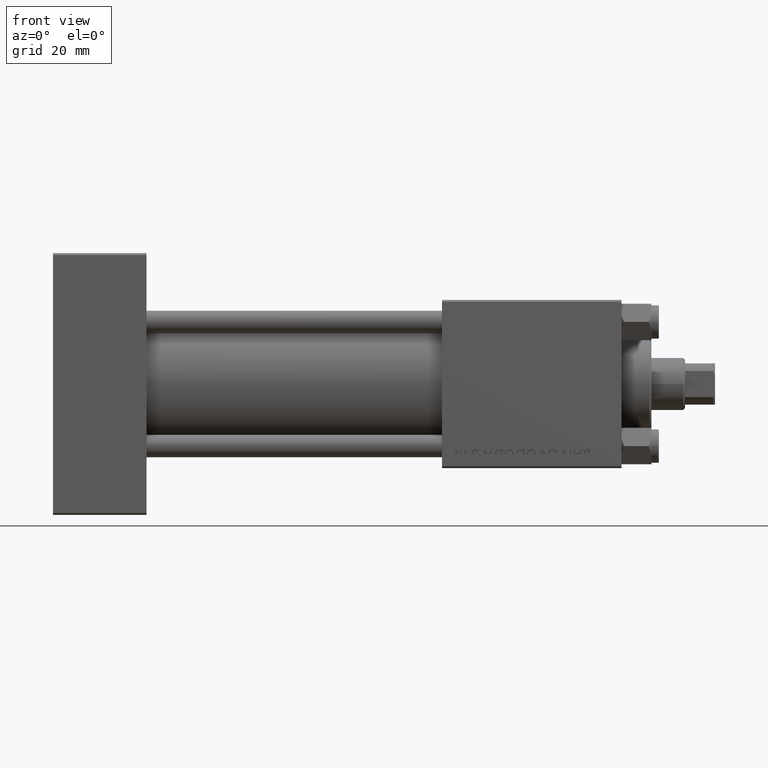
[diagram: clean part render]
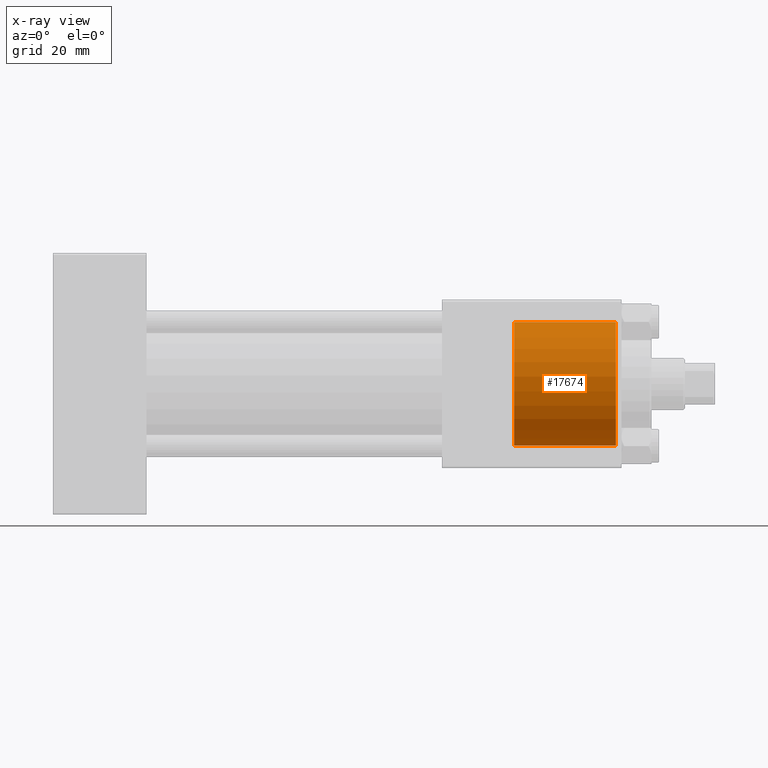
[diagram: x-ray — body ghosted, one internal face saturated and labeled with its STEP entity id]
A machine part, front view, then the same camera in x-ray: the body is ghosted and one INTERNAL B-rep face — a face not visible from any outside direction — is saturated and labeled: STEP entity #17674.
In plain terms, the highlighted cylindrical surface (partial cylindrical patch) has radius 16.5 mm, axis along (1, 0, 0).
Its self-contained STEP definition (entity closure, byte-faithful):
#113 = CIRCLE ( 'NONE', #27527, 16.50000000000000000 ) ;
#784 = VERTEX_POINT ( 'NONE', #7978 ) ;
#1565 = EDGE_CURVE ( 'NONE', #45558, #784, #21530, .T. ) ;
#1785 = ORIENTED_EDGE ( 'NONE', *, *, #38519, .T. ) ;
#2133 = CARTESIAN_POINT ( 'NONE',  ( 123.3000000000000256, 0.000000000000000000, -16.50000000000000000 ) ) ;
#2617 = DIRECTION ( 'NONE',  ( 1.000000000000000000, -0.000000000000000000, -0.000000000000000000 ) ) ;
#4291 = DIRECTION ( 'NONE',  ( 0.000000000000000000, 0.000000000000000000, -1.000000000000000000 ) ) ;
#7978 = CARTESIAN_POINT ( 'NONE',  ( 150.5000000000000284, 0.000000000000000000, -16.50000000000000000 ) ) ;
#12775 = DIRECTION ( 'NONE',  ( 0.000000000000000000, 0.000000000000000000, 1.000000000000000000 ) ) ;
#13823 = CARTESIAN_POINT ( 'NONE',  ( 123.3000000000000256, 0.000000000000000000, -16.50000000000000000 ) ) ;
#14298 = CIRCLE ( 'NONE', #28039, 16.50000000000000000 ) ;
#16556 = CARTESIAN_POINT ( 'NONE',  ( 150.5000000000000284, 0.000000000000000000, 0.000000000000000000 ) ) ;
#17674 = ADVANCED_FACE ( 'NONE', ( #32109 ), #44497, .F. ) ;
#18295 = EDGE_CURVE ( 'NONE', #34626, #45558, #14298, .T. ) ;
#20161 = VECTOR ( 'NONE', #47272, 1000.000000000000000 ) ;
#21530 = LINE ( 'NONE', #2133, #49394 ) ;
#22037 = ORIENTED_EDGE ( 'NONE', *, *, #18295, .F. ) ;
#23452 = DIRECTION ( 'NONE',  ( 1.000000000000000000, 0.000000000000000000, 0.000000000000000000 ) ) ;
#24264 = DIRECTION ( 'NONE',  ( 1.000000000000000000, -0.000000000000000000, -0.000000000000000000 ) ) ;
#24798 = AXIS2_PLACEMENT_3D ( 'NONE', #32860, #24264, #39964 ) ;
#25768 = EDGE_LOOP ( 'NONE', ( #22037, #38548, #1785, #34978 ) ) ;
#27527 = AXIS2_PLACEMENT_3D ( 'NONE', #16556, #47404, #12775 ) ;
#27788 = CARTESIAN_POINT ( 'NONE',  ( 123.3000000000000256, 2.020667218593133100E-15, 16.50000000000000000 ) ) ;
#28039 = AXIS2_PLACEMENT_3D ( 'NONE', #42693, #23452, #4291 ) ;
#30642 = VERTEX_POINT ( 'NONE', #43407 ) ;
#32109 = FACE_OUTER_BOUND ( 'NONE', #25768, .T. ) ;
#32229 = EDGE_CURVE ( 'NONE', #34626, #30642, #39677, .T. ) ;
#32860 = CARTESIAN_POINT ( 'NONE',  ( 123.3000000000000256, 0.000000000000000000, 0.000000000000000000 ) ) ;
#34626 = VERTEX_POINT ( 'NONE', #49845 ) ;
#34978 = ORIENTED_EDGE ( 'NONE', *, *, #1565, .F. ) ;
#38519 = EDGE_CURVE ( 'NONE', #30642, #784, #113, .T. ) ;
#38548 = ORIENTED_EDGE ( 'NONE', *, *, #32229, .T. ) ;
#39677 = LINE ( 'NONE', #27788, #20161 ) ;
#39964 = DIRECTION ( 'NONE',  ( 0.000000000000000000, 0.000000000000000000, -1.000000000000000000 ) ) ;
#42693 = CARTESIAN_POINT ( 'NONE',  ( 123.3000000000000256, 0.000000000000000000, 0.000000000000000000 ) ) ;
#43407 = CARTESIAN_POINT ( 'NONE',  ( 150.5000000000000284, 2.020667218593133100E-15, 16.50000000000000000 ) ) ;
#44497 = CYLINDRICAL_SURFACE ( 'NONE', #24798, 16.50000000000000000 ) ;
#45558 = VERTEX_POINT ( 'NONE', #13823 ) ;
#47272 = DIRECTION ( 'NONE',  ( 1.000000000000000000, -0.000000000000000000, -0.000000000000000000 ) ) ;
#47404 = DIRECTION ( 'NONE',  ( 1.000000000000000000, 0.000000000000000000, 0.000000000000000000 ) ) ;
#49394 = VECTOR ( 'NONE', #2617, 1000.000000000000000 ) ;
#49845 = CARTESIAN_POINT ( 'NONE',  ( 123.3000000000000256, 2.020667218593133100E-15, 16.50000000000000000 ) ) ;